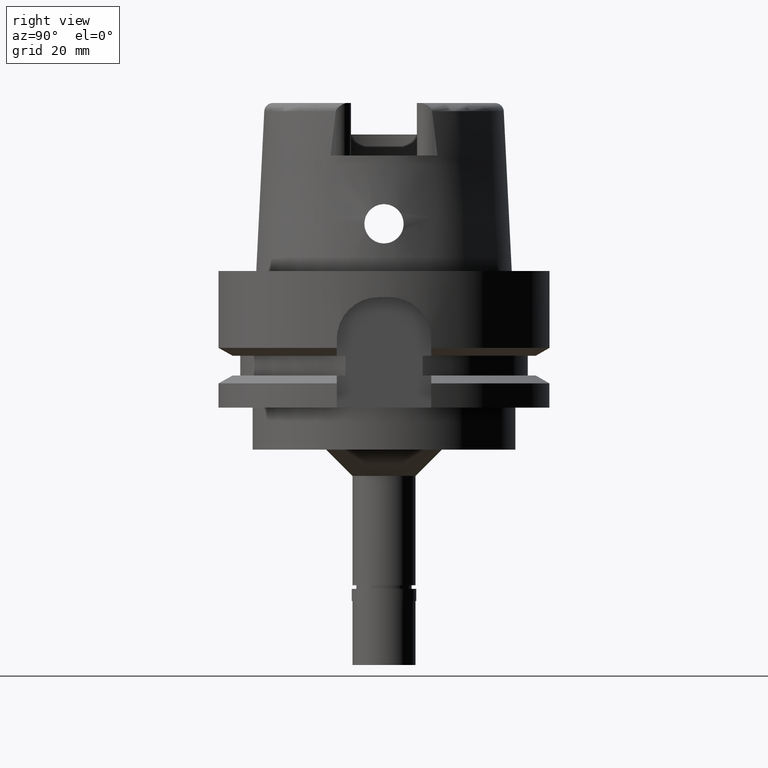
[diagram: clean part render]
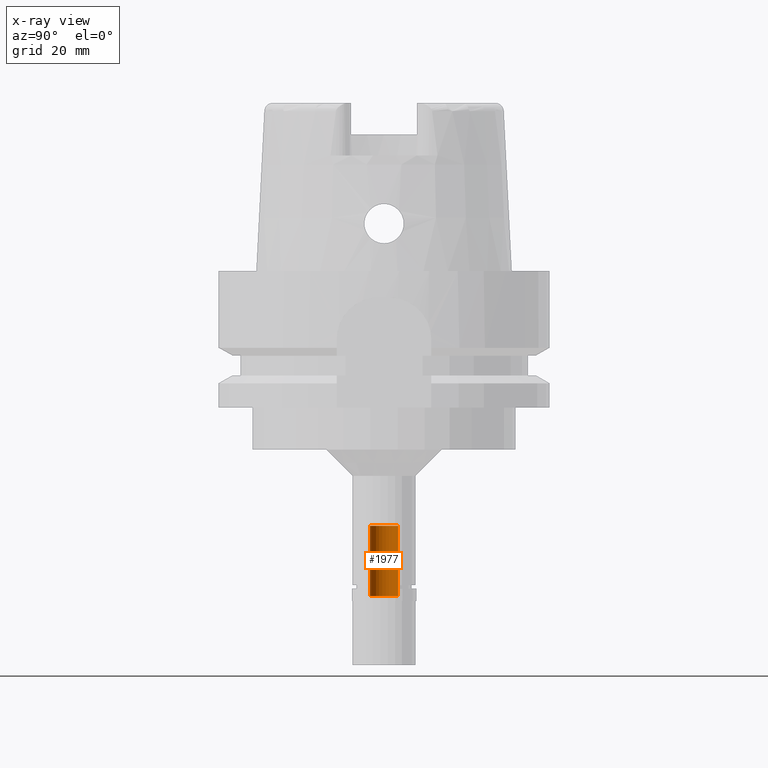
[diagram: x-ray — body ghosted, one internal face saturated and labeled with its STEP entity id]
A machine part, right view, then the same camera in x-ray: the body is ghosted and one INTERNAL B-rep face — a face not visible from any outside direction — is saturated and labeled: STEP entity #1977.
In plain terms, the highlighted cylindrical surface (edge-blend (fillet) strip) has radius 2.7 mm, axis along (0, 0, 1).
Its self-contained STEP definition (entity closure, byte-faithful):
#315 = EDGE_CURVE ( 'NONE', #724, #1364, #2318, .T. ) ;
#623 = VERTEX_POINT ( 'NONE', #2387 ) ;
#637 = LINE ( 'NONE', #3617, #1674 ) ;
#724 = VERTEX_POINT ( 'NONE', #2126 ) ;
#776 = CYLINDRICAL_SURFACE ( 'NONE', #3038, 2.700000000000000178 ) ;
#967 = CARTESIAN_POINT ( 'NONE',  ( 0.0000000000000000000, 2.700000000000000178, -61.85595815778999906 ) ) ;
#1123 = DIRECTION ( 'NONE',  ( 0.0000000000000000000, 1.768914344063000118E-14, 1.000000000000000000 ) ) ;
#1184 = ORIENTED_EDGE ( 'NONE', *, *, #5141, .T. ) ;
#1198 = LINE ( 'NONE', #3394, #2952 ) ;
#1321 = AXIS2_PLACEMENT_3D ( 'NONE', #4488, #5060, #2487 ) ;
#1364 = VERTEX_POINT ( 'NONE', #967 ) ;
#1401 = DIRECTION ( 'NONE',  ( 0.0000000000000000000, 1.000000000000000000, 0.0000000000000000000 ) ) ;
#1585 = EDGE_LOOP ( 'NONE', ( #1184, #2244, #1823, #2471 ) ) ;
#1663 = DIRECTION ( 'NONE',  ( 0.0000000000000000000, 0.0000000000000000000, -1.000000000000000000 ) ) ;
#1674 = VECTOR ( 'NONE', #1123, 1000.000000000000000 ) ;
#1802 = DIRECTION ( 'NONE',  ( 0.0000000000000000000, 0.0000000000000000000, 1.000000000000000000 ) ) ;
#1823 = ORIENTED_EDGE ( 'NONE', *, *, #315, .T. ) ;
#1837 = EDGE_CURVE ( 'NONE', #724, #3112, #1198, .T. ) ;
#1977 = ADVANCED_FACE ( 'NONE', ( #2083 ), #776, .F. ) ;
#2083 = FACE_OUTER_BOUND ( 'NONE', #1585, .T. ) ;
#2126 = CARTESIAN_POINT ( 'NONE',  ( 0.0000000000000000000, -2.700000000000000178, -61.85595815778999906 ) ) ;
#2244 = ORIENTED_EDGE ( 'NONE', *, *, #1837, .F. ) ;
#2318 = CIRCLE ( 'NONE', #4855, 2.700000000000000178 ) ;
#2387 = CARTESIAN_POINT ( 'NONE',  ( 0.0000000000000000000, 2.700000000000000178, -48.50000000000000000 ) ) ;
#2471 = ORIENTED_EDGE ( 'NONE', *, *, #4690, .T. ) ;
#2487 = DIRECTION ( 'NONE',  ( 0.0000000000000000000, 1.000000000000000000, 0.0000000000000000000 ) ) ;
#2506 = CARTESIAN_POINT ( 'NONE',  ( 0.0000000000000000000, 0.0000000000000000000, -61.85595815778999906 ) ) ;
#2617 = CARTESIAN_POINT ( 'NONE',  ( 0.0000000000000000000, -2.700000000000000178, -48.50000000000000000 ) ) ;
#2952 = VECTOR ( 'NONE', #5143, 1000.000000000000000 ) ;
#3038 = AXIS2_PLACEMENT_3D ( 'NONE', #3805, #1802, #1401 ) ;
#3112 = VERTEX_POINT ( 'NONE', #2617 ) ;
#3394 = CARTESIAN_POINT ( 'NONE',  ( 0.0000000000000000000, -2.700000000000000178, -61.85595815778999906 ) ) ;
#3617 = CARTESIAN_POINT ( 'NONE',  ( 0.0000000000000000000, 2.700000000000000178, -61.85595815778999906 ) ) ;
#3805 = CARTESIAN_POINT ( 'NONE',  ( 0.0000000000000000000, 0.0000000000000000000, -76.14999999999999147 ) ) ;
#4488 = CARTESIAN_POINT ( 'NONE',  ( 0.0000000000000000000, 0.0000000000000000000, -48.50000000000000000 ) ) ;
#4690 = EDGE_CURVE ( 'NONE', #1364, #623, #637, .T. ) ;
#4855 = AXIS2_PLACEMENT_3D ( 'NONE', #2506, #1663, #5102 ) ;
#4920 = CIRCLE ( 'NONE', #1321, 2.700000000000000178 ) ;
#5060 = DIRECTION ( 'NONE',  ( 0.0000000000000000000, 0.0000000000000000000, 1.000000000000000000 ) ) ;
#5102 = DIRECTION ( 'NONE',  ( 0.0000000000000000000, -1.000000000000000000, 0.0000000000000000000 ) ) ;
#5141 = EDGE_CURVE ( 'NONE', #623, #3112, #4920, .T. ) ;
#5143 = DIRECTION ( 'NONE',  ( 0.0000000000000000000, -1.768914344063000118E-14, 1.000000000000000000 ) ) ;